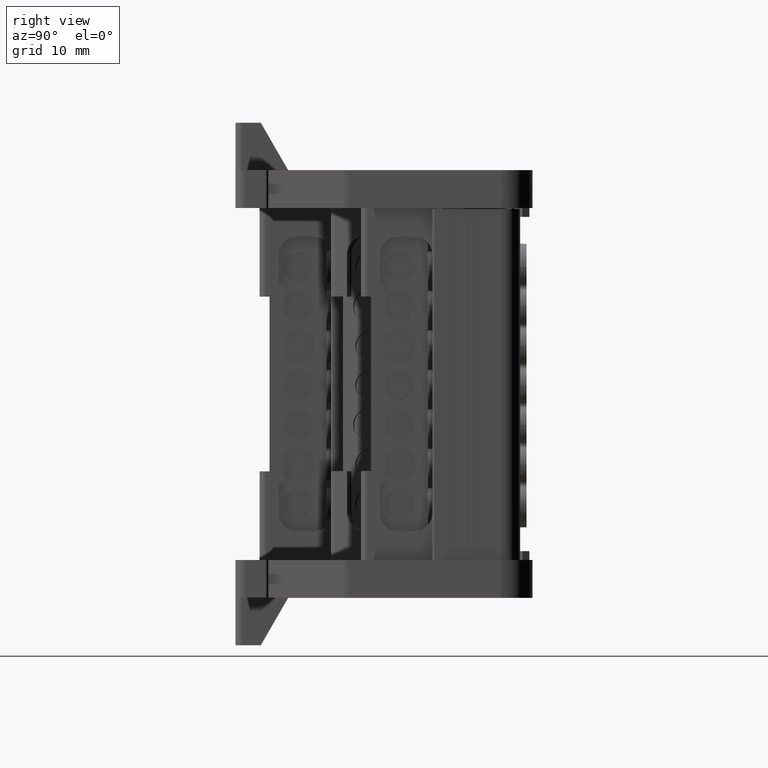
[diagram: clean part render]
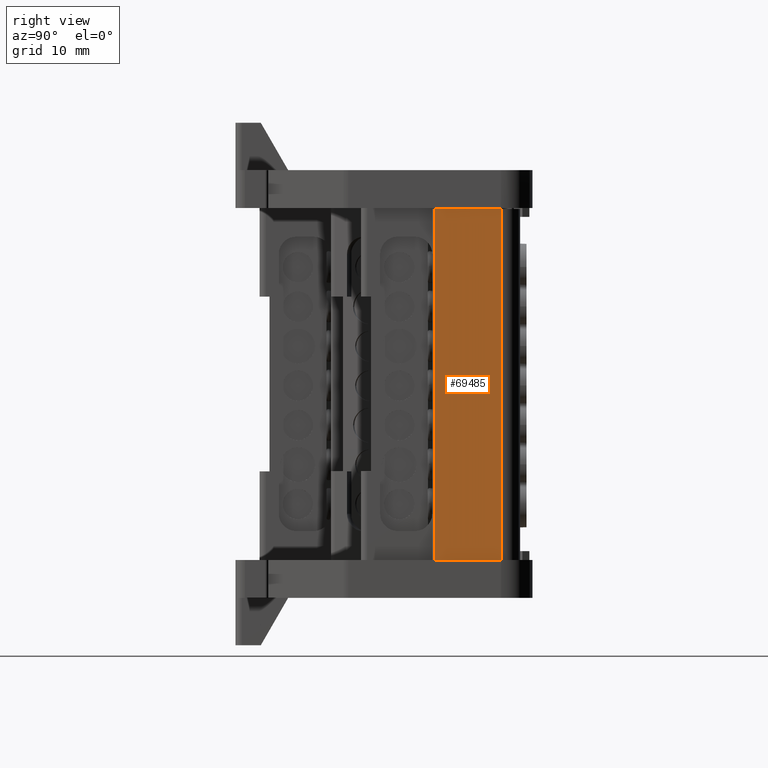
[diagram: same view with one face highlighted and labeled with its STEP entity id]
A machine part, right view. The second image highlights one B-rep face of the part: STEP entity #69485.
In plain terms, the highlighted planar face has unit normal (0.9998, 0.0175, -0).
Its self-contained STEP definition (entity closure, byte-faithful):
#6001 = FACE_OUTER_BOUND ( 'NONE', #87989, .T. ) ;
#6013 = DIRECTION ( 'NONE',  ( 0.9998476951563916000, 0.01745240643726309700, -6.701918548398464200E-015 ) ) ;
#6022 = DIRECTION ( 'NONE',  ( -0.01745240643726309400, 0.9998476951563914900, 0.0000000000000000000 ) ) ;
#6038 = CARTESIAN_POINT ( 'NONE',  ( -266.0590344645136200, 218.5356428969834600, 195.0972931816411900 ) ) ;
#6042 = PLANE ( 'NONE',  #23670 ) ;
#10166 = DIRECTION ( 'NONE',  ( -0.01745240643726309400, 0.9998476951563914900, 0.0000000000000000000 ) ) ;
#10169 = LINE ( 'NONE', #10189, #27640 ) ;
#10189 = CARTESIAN_POINT ( 'NONE',  ( -266.0590344645146400, 218.5356428969834300, 44.61293318655240400 ) ) ;
#10219 = DIRECTION ( 'NONE',  ( -6.982962677686110500E-015, 1.604252062634190000E-014, -1.000000000000000000 ) ) ;
#10225 = LINE ( 'NONE', #10236, #27615 ) ;
#10236 = CARTESIAN_POINT ( 'NONE',  ( -266.2446231779113600, 229.1680131665820900, 195.0972931816415600 ) ) ;
#11179 = VERTEX_POINT ( 'NONE', #59191 ) ;
#11190 = VERTEX_POINT ( 'NONE', #59206 ) ;
#11235 = VERTEX_POINT ( 'NONE', #59228 ) ;
#11339 = VERTEX_POINT ( 'NONE', #63645 ) ;
#23670 = AXIS2_PLACEMENT_3D ( 'NONE', #6038, #6013, #6022 ) ;
#27615 = VECTOR ( 'NONE', #10219, 1000.000000000000000 ) ;
#27640 = VECTOR ( 'NONE', #10166, 1000.000000000000100 ) ;
#30056 = VECTOR ( 'NONE', #52825, 1000.000000000000100 ) ;
#52825 = DIRECTION ( 'NONE',  ( 0.01745240643726309400, -0.9998476951563914900, -0.0000000000000000000 ) ) ;
#52841 = CARTESIAN_POINT ( 'NONE',  ( -266.0590344645136200, 218.5356428969822400, 195.0972931816411900 ) ) ;
#52852 = LINE ( 'NONE', #52863, #30056 ) ;
#52863 = CARTESIAN_POINT ( 'NONE',  ( -266.0590344645142400, 218.5356428969834600, 100.1622931816413600 ) ) ;
#52886 = LINE ( 'NONE', #52841, #69162 ) ;
#52973 = DIRECTION ( 'NONE',  ( -6.700897813742073800E-015, -1.169646064160823000E-016, -1.000000000000000000 ) ) ;
#59191 = CARTESIAN_POINT ( 'NONE',  ( -266.0590344645142400, 218.5356428969822400, 100.1622931816412700 ) ) ;
#59206 = CARTESIAN_POINT ( 'NONE',  ( -266.2446231779114200, 229.1680131665837100, 100.1622931816413600 ) ) ;
#59228 = CARTESIAN_POINT ( 'NONE',  ( -266.0590344645146400, 218.5356428969826900, 44.61293318655240400 ) ) ;
#63645 = CARTESIAN_POINT ( 'NONE',  ( -266.2446231779117600, 229.1680131665845900, 44.61293318655248900 ) ) ;
#69162 = VECTOR ( 'NONE', #52973, 1000.000000000000000 ) ;
#69485 = ADVANCED_FACE ( 'NONE', ( #6001 ), #6042, .T. ) ;
#70181 = EDGE_CURVE ( 'NONE', #11235, #11339, #10169, .T. ) ;
#70191 = EDGE_CURVE ( 'NONE', #11190, #11339, #10225, .T. ) ;
#74419 = ORIENTED_EDGE ( 'NONE', *, *, #70191, .F. ) ;
#74422 = ORIENTED_EDGE ( 'NONE', *, *, #78049, .T. ) ;
#74446 = ORIENTED_EDGE ( 'NONE', *, *, #70181, .T. ) ;
#74512 = ORIENTED_EDGE ( 'NONE', *, *, #78080, .T. ) ;
#78049 = EDGE_CURVE ( 'NONE', #11190, #11179, #52852, .T. ) ;
#78080 = EDGE_CURVE ( 'NONE', #11179, #11235, #52886, .T. ) ;
#87989 = EDGE_LOOP ( 'NONE', ( #74422, #74512, #74446, #74419 ) ) ;